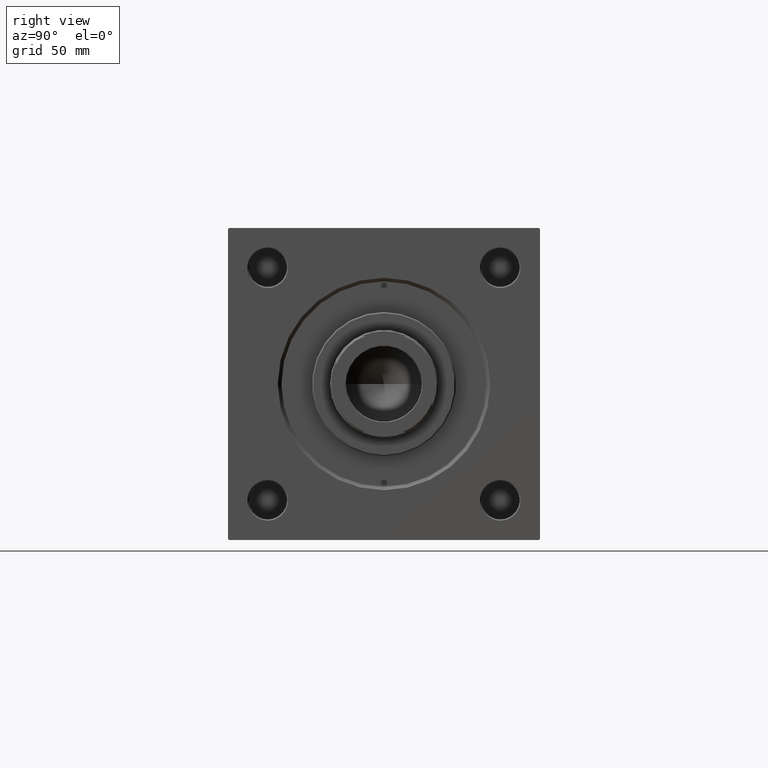
[diagram: clean part render]
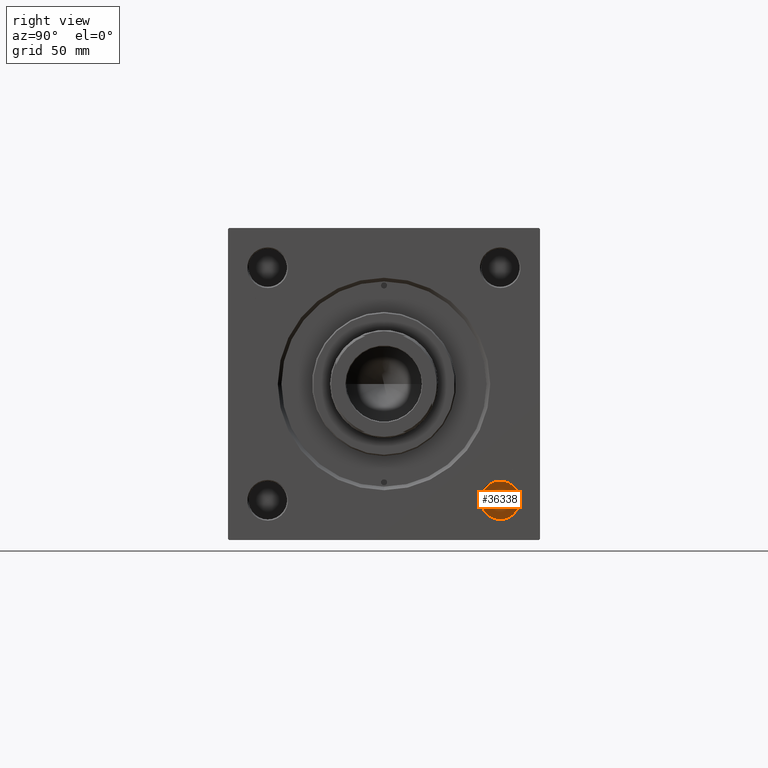
[diagram: same view with one face highlighted and labeled with its STEP entity id]
A machine part, right view. The second image highlights one B-rep face of the part: STEP entity #36338.
In plain terms, the highlighted planar face has unit normal (1, 0, 0).
Its self-contained STEP definition (entity closure, byte-faithful):
#1048 = CIRCLE ( 'NONE', #7722, 8.000000000000000000 ) ;
#2999 = CARTESIAN_POINT ( 'NONE',  ( 158.0000000000000000, 48.45000000000000995, -48.45000000000001705 ) ) ;
#5429 = DIRECTION ( 'NONE',  ( 1.000000000000000000, 0.000000000000000000, 0.000000000000000000 ) ) ;
#7032 = CARTESIAN_POINT ( 'NONE',  ( 158.0000000000000000, 48.45000000000000995, -40.45000000000001705 ) ) ;
#7134 = EDGE_CURVE ( 'NONE', #21251, #47826, #15350, .T. ) ;
#7722 = AXIS2_PLACEMENT_3D ( 'NONE', #38970, #46418, #15604 ) ;
#15074 = CARTESIAN_POINT ( 'NONE',  ( 158.0000000000000000, 48.45000000000000995, -56.45000000000001705 ) ) ;
#15350 = CIRCLE ( 'NONE', #24363, 8.000000000000000000 ) ;
#15590 = DIRECTION ( 'NONE',  ( 1.000000000000000000, 0.000000000000000000, 0.000000000000000000 ) ) ;
#15604 = DIRECTION ( 'NONE',  ( 0.000000000000000000, 0.000000000000000000, -1.000000000000000000 ) ) ;
#16246 = PLANE ( 'NONE',  #27433 ) ;
#18727 = EDGE_LOOP ( 'NONE', ( #34874, #27554 ) ) ;
#20363 = DIRECTION ( 'NONE',  ( 0.000000000000000000, 0.000000000000000000, -1.000000000000000000 ) ) ;
#21251 = VERTEX_POINT ( 'NONE', #7032 ) ;
#24363 = AXIS2_PLACEMENT_3D ( 'NONE', #2999, #15590, #34089 ) ;
#24710 = CARTESIAN_POINT ( 'NONE',  ( 158.0000000000000000, 48.45000000000000995, -48.45000000000001705 ) ) ;
#27433 = AXIS2_PLACEMENT_3D ( 'NONE', #24710, #5429, #20363 ) ;
#27554 = ORIENTED_EDGE ( 'NONE', *, *, #7134, .T. ) ;
#31510 = EDGE_CURVE ( 'NONE', #47826, #21251, #1048, .T. ) ;
#34089 = DIRECTION ( 'NONE',  ( 0.000000000000000000, 0.000000000000000000, -1.000000000000000000 ) ) ;
#34874 = ORIENTED_EDGE ( 'NONE', *, *, #31510, .T. ) ;
#36338 = ADVANCED_FACE ( 'NONE', ( #40130 ), #16246, .T. ) ;
#38970 = CARTESIAN_POINT ( 'NONE',  ( 158.0000000000000000, 48.45000000000000995, -48.45000000000001705 ) ) ;
#40130 = FACE_OUTER_BOUND ( 'NONE', #18727, .T. ) ;
#46418 = DIRECTION ( 'NONE',  ( 1.000000000000000000, 0.000000000000000000, 0.000000000000000000 ) ) ;
#47826 = VERTEX_POINT ( 'NONE', #15074 ) ;